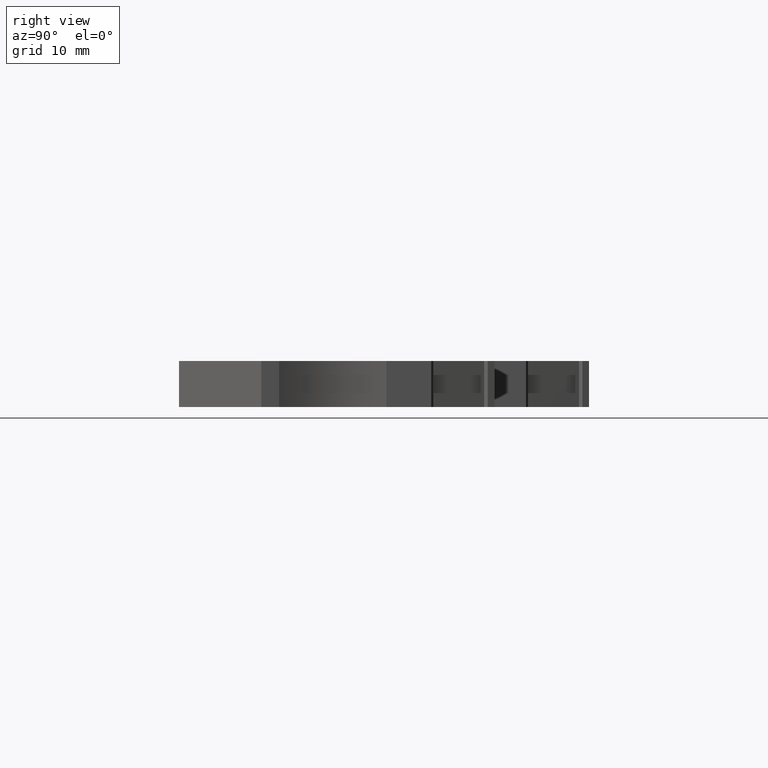
[diagram: clean part render]
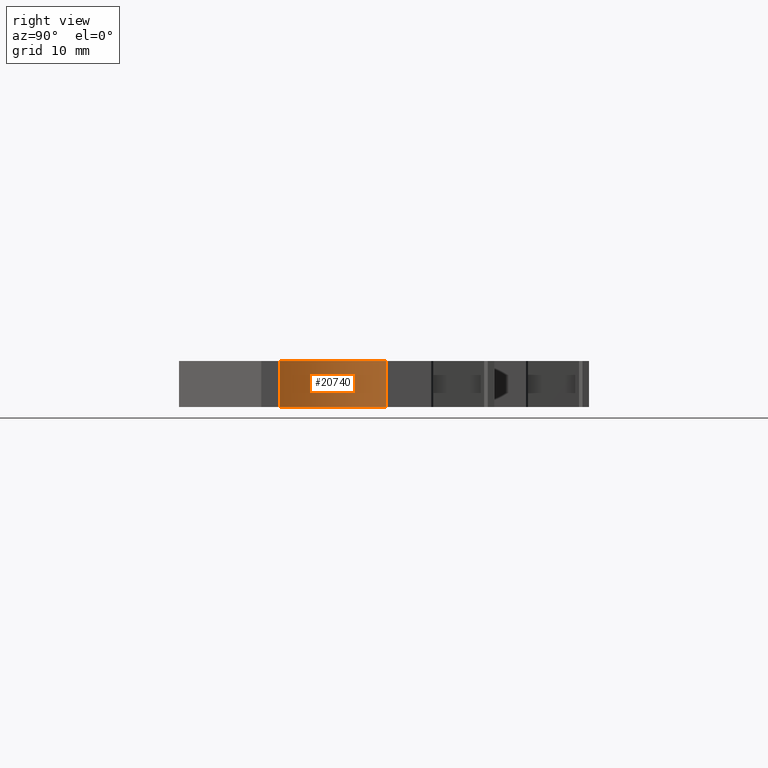
[diagram: same view with one face highlighted and labeled with its STEP entity id]
A machine part, right view. The second image highlights one B-rep face of the part: STEP entity #20740.
In plain terms, the highlighted cylindrical surface (partial cylindrical patch) has radius 15 mm, axis along (0, 0, 1).
Its self-contained STEP definition (entity closure, byte-faithful):
#770=CARTESIAN_POINT('',(202.868635760428,7.69671382216893,48.52));
#780=VERTEX_POINT('',#770);
#810=CARTESIAN_POINT('',(216.616362845295,13.696713822169,48.52));
#820=DIRECTION('',(0.,0.,1.));
#830=DIRECTION('',(1.,-6.93889390390723E-17,0.));
#840=AXIS2_PLACEMENT_3D('',#810,#820,#830);
#850=CIRCLE('',#840,15.);
#860=CARTESIAN_POINT('',(202.86863574573,19.6967137884929,48.52));
#870=VERTEX_POINT('',#860);
#880=EDGE_CURVE('',#870,#780,#850,.T.);
#20280=CARTESIAN_POINT('',(202.868635760428,7.69671382216893,53.67));
#20290=VERTEX_POINT('',#20280);
#20320=CARTESIAN_POINT('',(202.868635760428,7.69671382216893,53.67));
#20330=DIRECTION('',(0.,0.,1.));
#20340=VECTOR('',#20330,1.);
#20350=LINE('',#20320,#20340);
#20360=EDGE_CURVE('',#780,#20290,#20350,.T.);
#20500=CARTESIAN_POINT('',(216.616362845295,13.696713822169,53.67));
#20510=DIRECTION('',(0.,0.,1.));
#20520=DIRECTION('',(1.,-6.93889390390723E-17,0.));
#20530=AXIS2_PLACEMENT_3D('',#20500,#20510,#20520);
#20540=CYLINDRICAL_SURFACE('',#20530,15.);
#20550=CARTESIAN_POINT('',(216.616362845295,13.696713822169,53.67));
#20560=DIRECTION('',(0.,0.,1.));
#20570=DIRECTION('',(1.,-6.93889390390723E-17,0.));
#20580=AXIS2_PLACEMENT_3D('',#20550,#20560,#20570);
#20590=CIRCLE('',#20580,15.);
#20600=CARTESIAN_POINT('',(202.86863574573,19.6967137884929,53.67));
#20610=VERTEX_POINT('',#20600);
#20620=EDGE_CURVE('',#20610,#20290,#20590,.T.);
#20630=ORIENTED_EDGE('',*,*,#20620,.T.);
#20640=CARTESIAN_POINT('',(202.86863574573,19.6967137884929,53.67));
#20650=DIRECTION('',(0.,0.,1.));
#20660=VECTOR('',#20650,1.);
#20670=LINE('',#20640,#20660);
#20680=EDGE_CURVE('',#870,#20610,#20670,.T.);
#20690=ORIENTED_EDGE('',*,*,#20680,.T.);
#20700=ORIENTED_EDGE('',*,*,#880,.F.);
#20710=ORIENTED_EDGE('',*,*,#20360,.F.);
#20720=EDGE_LOOP('',(#20710,#20700,#20690,#20630));
#20730=FACE_OUTER_BOUND('',#20720,.T.);
#20740=ADVANCED_FACE('',(#20730),#20540,.F.);